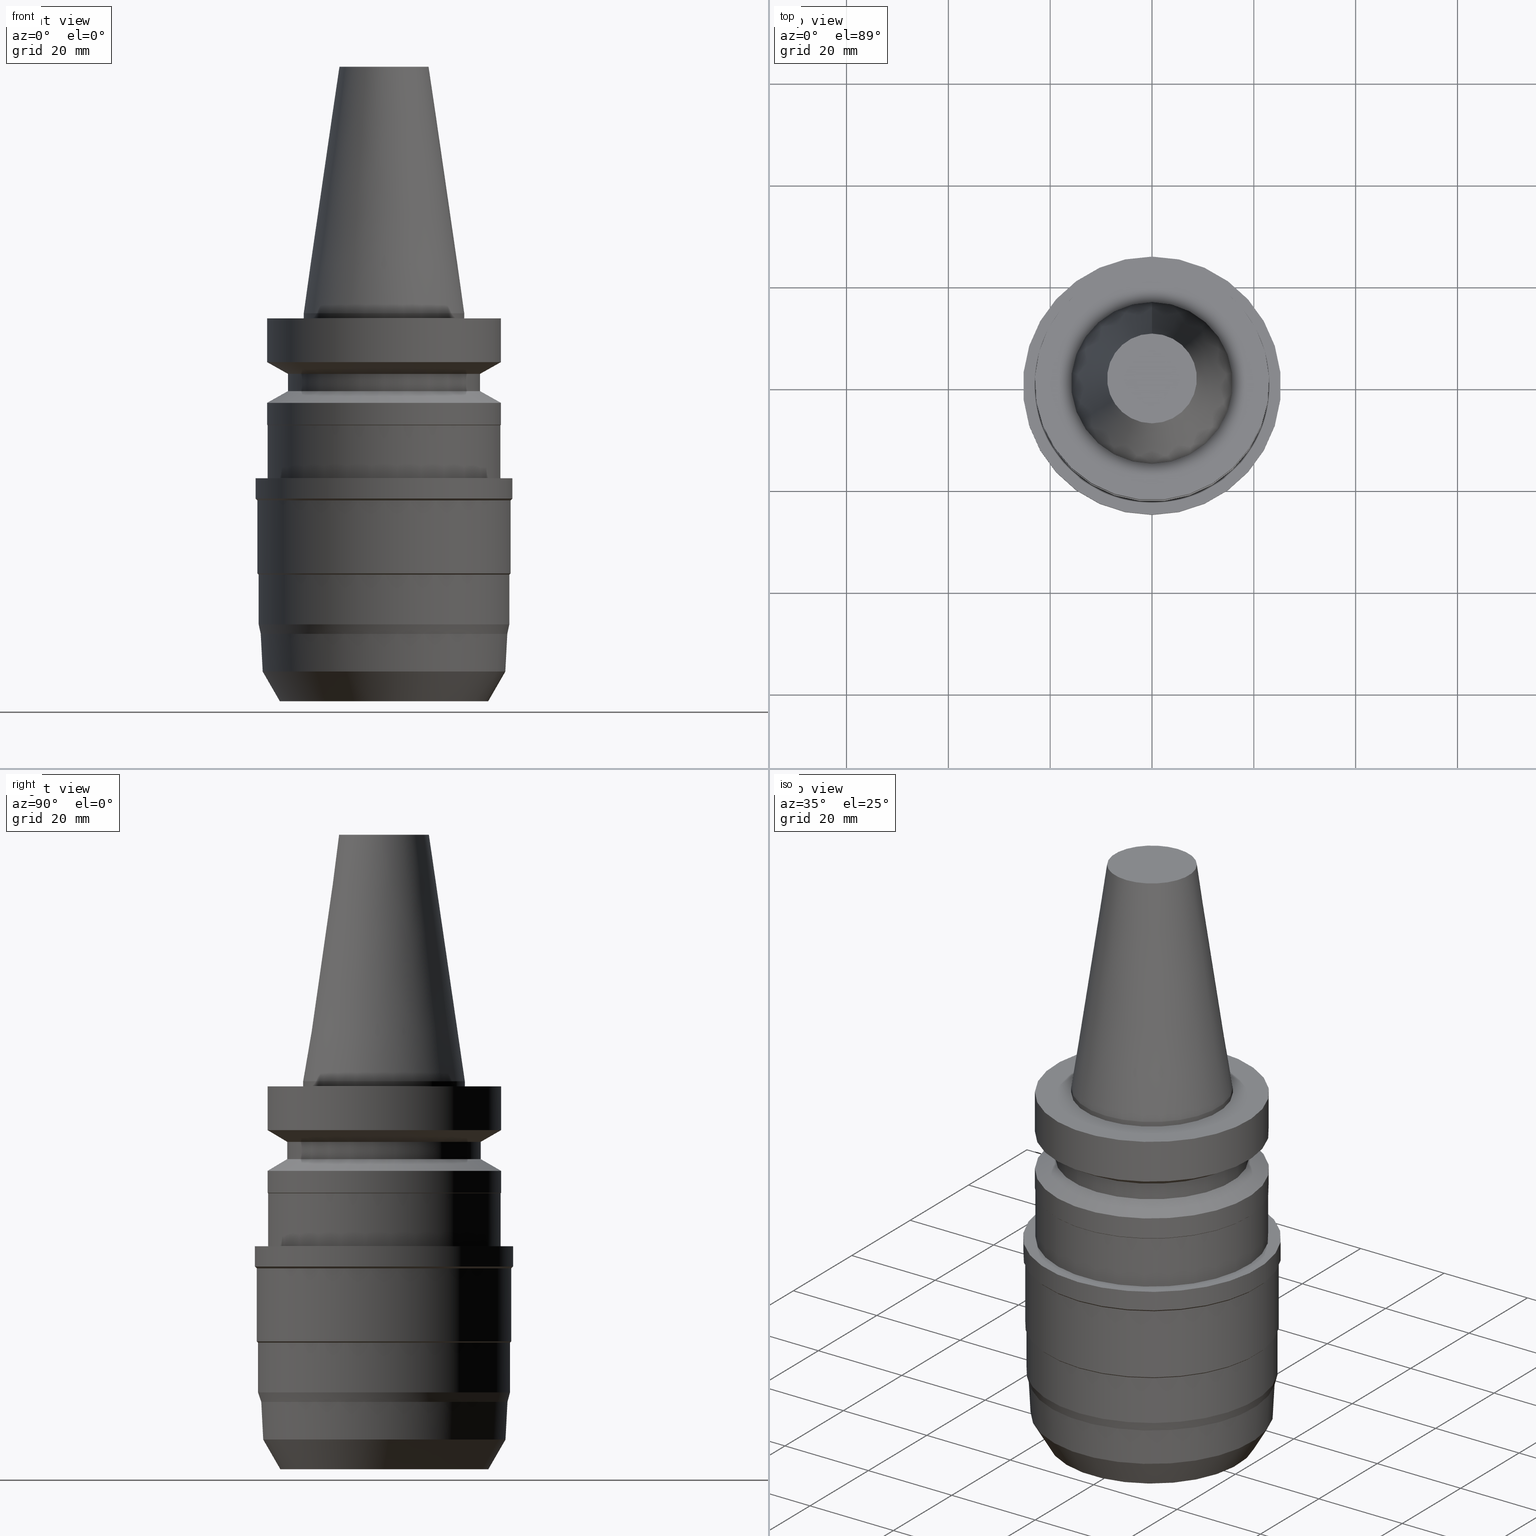
[diagram: canonical four-view strip — front | top / right | iso, engineering-drawing reading convention]
A machine part, canonical four-view strip (front | top / right | iso — engineering-drawing reading convention). The complete STEP part file that produces these views, byte-faithful:
ISO-10303-21;
HEADER;
FILE_DESCRIPTION((''),'1');
FILE_NAME('V:/90_\X2\53D65F9730C730FC30BF\X0\/00_\X2\6DE18DEF30C730FC30BF\X0\/ALL/BBT-BKUS\X2\FF76FF80FF9BFF78FF9E752852A05DE556F3\X0\201801/BBT30-HMC-S_HMC-J/BBT30-HMC.750S-3.stp','2018-02-05T01:38:00',(''),(''),'Spatial Interop R21 SP3','Kubotek KeyCreator 2011 V10.0.2 (22737)',' ');
FILE_SCHEMA(('automotive_design'));
ENDSEC;
DATA;
#1=MECHANICAL_DESIGN_GEOMETRIC_PRESENTATION_REPRESENTATION(' ',(#10,#11,#12,#13,#14,#15,#16,#17,#18,#19,#20,#21,#22,#23,#24,#25,#26,#27,#28,#29,#30,#31,#32,#33,#34,#35,#36,#37,#38,#39,#40,#41,#42,#43,#44,#45,#46,#47,#48,#49,#50,#51),#6);
#2=PRODUCT_DEFINITION_CONTEXT('',#52,'design');
#3=APPLICATION_PROTOCOL_DEFINITION('INTERNATIONAL STANDARD','automotive_design',1994,#52);
#4=PRODUCT_CATEGORY_RELATIONSHIP('NONE','NONE',#53,#54);
#5=SHAPE_DEFINITION_REPRESENTATION(#55,#56);
#6= (GEOMETRIC_REPRESENTATION_CONTEXT(3)GLOBAL_UNCERTAINTY_ASSIGNED_CONTEXT((#59))GLOBAL_UNIT_ASSIGNED_CONTEXT((#61,#62,#63))REPRESENTATION_CONTEXT('NONE','WORKSPACE'));
#10=STYLED_ITEM('',(#65),#66);
#11=STYLED_ITEM('',(#67),#68);
#12=STYLED_ITEM('',(#69,#70),#71);
#13=STYLED_ITEM('',(#72,#73),#74);
#14=STYLED_ITEM('',(#75),#76);
#15=STYLED_ITEM('',(#77),#78);
#16=STYLED_ITEM('',(#79,#80),#81);
#17=STYLED_ITEM('',(#82,#83),#84);
#18=STYLED_ITEM('',(#85,#86),#87);
#19=STYLED_ITEM('',(#88,#89),#90);
#20=STYLED_ITEM('',(#91),#92);
#21=STYLED_ITEM('',(#93),#94);
#22=STYLED_ITEM('',(#95,#96),#97);
#23=STYLED_ITEM('',(#98,#99),#100);
#24=STYLED_ITEM('',(#101,#102),#103);
#25=STYLED_ITEM('',(#104),#105);
#26=STYLED_ITEM('',(#106,#107),#108);
#27=STYLED_ITEM('',(#109,#110),#111);
#28=STYLED_ITEM('',(#112),#113);
#29=STYLED_ITEM('',(#114,#115),#116);
#30=STYLED_ITEM('',(#117,#118),#119);
#31=STYLED_ITEM('',(#120),#121);
#32=STYLED_ITEM('',(#122),#123);
#33=STYLED_ITEM('',(#124,#125),#126);
#34=STYLED_ITEM('',(#127),#128);
#35=STYLED_ITEM('',(#129),#130);
#36=STYLED_ITEM('',(#131),#132);
#37=STYLED_ITEM('',(#133),#134);
#38=STYLED_ITEM('',(#135,#136),#137);
#39=STYLED_ITEM('',(#138,#139),#140);
#40=STYLED_ITEM('',(#141),#142);
#41=STYLED_ITEM('',(#143,#144),#145);
#42=STYLED_ITEM('',(#146),#147);
#43=STYLED_ITEM('',(#148),#149);
#44=STYLED_ITEM('',(#150,#151),#152);
#45=STYLED_ITEM('',(#153,#154),#155);
#46=STYLED_ITEM('',(#156),#157);
#47=STYLED_ITEM('',(#158),#159);
#48=STYLED_ITEM('',(#160),#161);
#49=STYLED_ITEM('',(#162,#163),#164);
#50=STYLED_ITEM('',(#165,#166),#167);
#51=STYLED_ITEM('',(#168,#169),#170);
#52=APPLICATION_CONTEXT(' ');
#53=PRODUCT_CATEGORY('part','NONE');
#54=PRODUCT_RELATED_PRODUCT_CATEGORY('detail',' ',(#171));
#55=PRODUCT_DEFINITION_SHAPE('NONE','NONE',#172);
#56=ADVANCED_BREP_SHAPE_REPRESENTATION('Unnamed[1]',(#145,#173),#6);
#59=UNCERTAINTY_MEASURE_WITH_UNIT(LENGTH_MEASURE(1.0E-006),#61,'','');
#61= (CONVERSION_BASED_UNIT('MILLIMETRE',#176)LENGTH_UNIT()NAMED_UNIT(#179));
#62= (NAMED_UNIT(#181)PLANE_ANGLE_UNIT()SI_UNIT($,.RADIAN.));
#63= (NAMED_UNIT(#181)SOLID_ANGLE_UNIT()SI_UNIT($,.STERADIAN.));
#65=PRESENTATION_STYLE_ASSIGNMENT((#187));
#66=EDGE_CURVE('Unnamed[1]',#188,#188,#189,.T.);
#67=PRESENTATION_STYLE_ASSIGNMENT((#190));
#68=EDGE_CURVE('Unnamed[1]',#191,#191,#192,.T.);
#69=PRESENTATION_STYLE_ASSIGNMENT((#193));
#70=PRESENTATION_STYLE_ASSIGNMENT((#194));
#71=ADVANCED_FACE('Unnamed[1]',(#195,#196),#197,.T.);
#72=PRESENTATION_STYLE_ASSIGNMENT((#198));
#73=PRESENTATION_STYLE_ASSIGNMENT((#199));
#74=ADVANCED_FACE('Unnamed[1]',(#200,#201),#202,.T.);
#75=PRESENTATION_STYLE_ASSIGNMENT((#203));
#76=EDGE_CURVE('Unnamed[1]',#204,#204,#205,.T.);
#77=PRESENTATION_STYLE_ASSIGNMENT((#206));
#78=EDGE_CURVE('Unnamed[1]',#207,#207,#208,.T.);
#79=PRESENTATION_STYLE_ASSIGNMENT((#209));
#80=PRESENTATION_STYLE_ASSIGNMENT((#210));
#81=ADVANCED_FACE('Unnamed[1]',(#211,#212),#213,.T.);
#82=PRESENTATION_STYLE_ASSIGNMENT((#214));
#83=PRESENTATION_STYLE_ASSIGNMENT((#215));
#84=ADVANCED_FACE('Unnamed[1]',(#216,#217),#218,.T.);
#85=PRESENTATION_STYLE_ASSIGNMENT((#219));
#86=PRESENTATION_STYLE_ASSIGNMENT((#220));
#87=ADVANCED_FACE('Unnamed[1]',(#221,#222),#223,.T.);
#88=PRESENTATION_STYLE_ASSIGNMENT((#224));
#89=PRESENTATION_STYLE_ASSIGNMENT((#225));
#90=ADVANCED_FACE('Unnamed[1]',(#226,#227),#228,.T.);
#91=PRESENTATION_STYLE_ASSIGNMENT((#229));
#92=EDGE_CURVE('Unnamed[1]',#230,#230,#231,.T.);
#93=PRESENTATION_STYLE_ASSIGNMENT((#232));
#94=EDGE_CURVE('Unnamed[1]',#233,#233,#234,.T.);
#95=PRESENTATION_STYLE_ASSIGNMENT((#235));
#96=PRESENTATION_STYLE_ASSIGNMENT((#236));
#97=ADVANCED_FACE('Unnamed[1]',(#237,#238),#239,.T.);
#98=PRESENTATION_STYLE_ASSIGNMENT((#240));
#99=PRESENTATION_STYLE_ASSIGNMENT((#241));
#100=ADVANCED_FACE('Unnamed[1]',(#242,#243),#244,.T.);
#101=PRESENTATION_STYLE_ASSIGNMENT((#245));
#102=PRESENTATION_STYLE_ASSIGNMENT((#246));
#103=ADVANCED_FACE('Unnamed[1]',(#247,#248),#249,.T.);
#104=PRESENTATION_STYLE_ASSIGNMENT((#250));
#105=EDGE_CURVE('Unnamed[1]',#251,#251,#252,.T.);
#106=PRESENTATION_STYLE_ASSIGNMENT((#253));
#107=PRESENTATION_STYLE_ASSIGNMENT((#254));
#108=ADVANCED_FACE('Unnamed[1]',(#255,#256),#257,.T.);
#109=PRESENTATION_STYLE_ASSIGNMENT((#258));
#110=PRESENTATION_STYLE_ASSIGNMENT((#259));
#111=ADVANCED_FACE('Unnamed[1]',(#260,#261),#262,.T.);
#112=PRESENTATION_STYLE_ASSIGNMENT((#263));
#113=EDGE_CURVE('Unnamed[1]',#264,#264,#265,.T.);
#114=PRESENTATION_STYLE_ASSIGNMENT((#266));
#115=PRESENTATION_STYLE_ASSIGNMENT((#267));
#116=ADVANCED_FACE('Unnamed[1]',(#268,#269),#270,.T.);
#117=PRESENTATION_STYLE_ASSIGNMENT((#271));
#118=PRESENTATION_STYLE_ASSIGNMENT((#272));
#119=ADVANCED_FACE('Unnamed[1]',(#273,#274),#275,.T.);
#120=PRESENTATION_STYLE_ASSIGNMENT((#276));
#121=EDGE_CURVE('Unnamed[1]',#277,#277,#278,.T.);
#122=PRESENTATION_STYLE_ASSIGNMENT((#279));
#123=EDGE_CURVE('Unnamed[1]',#280,#280,#281,.T.);
#124=PRESENTATION_STYLE_ASSIGNMENT((#282));
#125=PRESENTATION_STYLE_ASSIGNMENT((#283));
#126=ADVANCED_FACE('Unnamed[1]',(#284,#285),#286,.T.);
#127=PRESENTATION_STYLE_ASSIGNMENT((#287));
#128=EDGE_CURVE('Unnamed[1]',#288,#288,#289,.T.);
#129=PRESENTATION_STYLE_ASSIGNMENT((#290));
#130=EDGE_CURVE('Unnamed[1]',#291,#291,#292,.T.);
#131=PRESENTATION_STYLE_ASSIGNMENT((#293));
#132=EDGE_CURVE('Unnamed[1]',#294,#294,#295,.T.);
#133=PRESENTATION_STYLE_ASSIGNMENT((#296));
#134=EDGE_CURVE('Unnamed[1]',#297,#297,#298,.T.);
#135=PRESENTATION_STYLE_ASSIGNMENT((#299));
#136=PRESENTATION_STYLE_ASSIGNMENT((#300));
#137=ADVANCED_FACE('Unnamed[1]',(#301,#302),#303,.T.);
#138=PRESENTATION_STYLE_ASSIGNMENT((#304));
#139=PRESENTATION_STYLE_ASSIGNMENT((#305));
#140=ADVANCED_FACE('Unnamed[1]',(#306,#307),#308,.T.);
#141=PRESENTATION_STYLE_ASSIGNMENT((#309));
#142=EDGE_CURVE('Unnamed[1]',#310,#310,#311,.T.);
#143=PRESENTATION_STYLE_ASSIGNMENT((#312));
#144=PRESENTATION_STYLE_ASSIGNMENT((#313));
#145=MANIFOLD_SOLID_BREP('Unnamed[1]',#314);
#146=PRESENTATION_STYLE_ASSIGNMENT((#315));
#147=EDGE_CURVE('Unnamed[1]',#316,#316,#317,.T.);
#148=PRESENTATION_STYLE_ASSIGNMENT((#318));
#149=EDGE_CURVE('Unnamed[1]',#319,#319,#320,.T.);
#150=PRESENTATION_STYLE_ASSIGNMENT((#321));
#151=PRESENTATION_STYLE_ASSIGNMENT((#322));
#152=ADVANCED_FACE('Unnamed[1]',(#323),#324,.T.);
#153=PRESENTATION_STYLE_ASSIGNMENT((#325));
#154=PRESENTATION_STYLE_ASSIGNMENT((#326));
#155=ADVANCED_FACE('Unnamed[1]',(#327,#328),#329,.T.);
#156=PRESENTATION_STYLE_ASSIGNMENT((#330));
#157=EDGE_CURVE('Unnamed[1]',#331,#331,#332,.T.);
#158=PRESENTATION_STYLE_ASSIGNMENT((#333));
#159=EDGE_CURVE('Unnamed[1]',#334,#334,#335,.T.);
#160=PRESENTATION_STYLE_ASSIGNMENT((#336));
#161=EDGE_CURVE('Unnamed[1]',#337,#337,#338,.T.);
#162=PRESENTATION_STYLE_ASSIGNMENT((#339));
#163=PRESENTATION_STYLE_ASSIGNMENT((#340));
#164=ADVANCED_FACE('Unnamed[1]',(#341,#342),#343,.T.);
#165=PRESENTATION_STYLE_ASSIGNMENT((#344));
#166=PRESENTATION_STYLE_ASSIGNMENT((#345));
#167=ADVANCED_FACE('Unnamed[1]',(#346),#347,.T.);
#168=PRESENTATION_STYLE_ASSIGNMENT((#348));
#169=PRESENTATION_STYLE_ASSIGNMENT((#349));
#170=ADVANCED_FACE('Unnamed[1]',(#350,#351),#352,.T.);
#171=PRODUCT('Unnamed[1]','Unnamed[1]','PART-Unnamed[1]-DESC',(#353));
#172=PRODUCT_DEFINITION('NONE','NONE',#354,#2);
#173=AXIS2_PLACEMENT_3D('',#355,#356,#357);
#176=LENGTH_MEASURE_WITH_UNIT(LENGTH_MEASURE(1.0),#358);
#179=DIMENSIONAL_EXPONENTS(1.0,0.0,0.0,0.0,0.0,0.0,0.0);
#181=DIMENSIONAL_EXPONENTS(0.0,0.0,0.0,0.0,0.0,0.0,0.0);
#187=CURVE_STYLE('',#359,POSITIVE_LENGTH_MEASURE(1000.0),#360);
#188=VERTEX_POINT('',#361);
#189=CIRCLE('',#362,24.2499999999994);
#190=CURVE_STYLE('',#363,POSITIVE_LENGTH_MEASURE(1000.0),#364);
#191=VERTEX_POINT('',#365);
#192=CIRCLE('',#366,23.0);
#193=SURFACE_STYLE_USAGE(.BOTH.,#367);
#194=CURVE_STYLE('',#368,POSITIVE_LENGTH_MEASURE(1000.0),#369);
#195=FACE_BOUND('',#370,.T.);
#196=FACE_BOUND('',#371,.T.);
#197=CONICAL_SURFACE('',#372,22.9500000000002,0.785398163469693);
#198=SURFACE_STYLE_USAGE(.BOTH.,#373);
#199=CURVE_STYLE('',#374,POSITIVE_LENGTH_MEASURE(1000.0),#375);
#200=FACE_BOUND('',#376,.T.);
#201=FACE_BOUND('',#377,.T.);
#202=CYLINDRICAL_SURFACE('',#378,25.3499999999993);
#203=CURVE_STYLE('',#379,POSITIVE_LENGTH_MEASURE(1000.0),#380);
#204=VERTEX_POINT('',#381);
#205=CIRCLE('',#382,19.0);
#206=CURVE_STYLE('',#383,POSITIVE_LENGTH_MEASURE(1000.0),#384);
#207=VERTEX_POINT('',#385);
#208=CIRCLE('',#386,23.0);
#209=SURFACE_STYLE_USAGE(.BOTH.,#387);
#210=CURVE_STYLE('',#388,POSITIVE_LENGTH_MEASURE(1000.0),#389);
#211=FACE_OUTER_BOUND('',#390,.T.);
#212=FACE_BOUND('',#391,.T.);
#213=PLANE('',#392);
#214=SURFACE_STYLE_USAGE(.BOTH.,#393);
#215=CURVE_STYLE('',#394,POSITIVE_LENGTH_MEASURE(1000.0),#395);
#216=FACE_BOUND('',#396,.T.);
#217=FACE_BOUND('',#397,.T.);
#218=CYLINDRICAL_SURFACE('',#398,24.7499999999997);
#219=SURFACE_STYLE_USAGE(.BOTH.,#399);
#220=CURVE_STYLE('',#400,POSITIVE_LENGTH_MEASURE(1000.0),#401);
#221=FACE_BOUND('',#402,.T.);
#222=FACE_BOUND('',#403,.T.);
#223=CYLINDRICAL_SURFACE('',#404,19.0);
#224=SURFACE_STYLE_USAGE(.BOTH.,#405);
#225=CURVE_STYLE('',#406,POSITIVE_LENGTH_MEASURE(1000.0),#407);
#226=FACE_BOUND('',#408,.T.);
#227=FACE_BOUND('',#409,.T.);
#228=CYLINDRICAL_SURFACE('',#410,24.9999999999997);
#229=CURVE_STYLE('',#411,POSITIVE_LENGTH_MEASURE(1000.0),#412);
#230=VERTEX_POINT('',#413);
#231=CIRCLE('',#414,23.0);
#232=CURVE_STYLE('',#415,POSITIVE_LENGTH_MEASURE(1000.0),#416);
#233=VERTEX_POINT('',#417);
#234=CIRCLE('',#418,25.3500000000001);
#235=SURFACE_STYLE_USAGE(.BOTH.,#419);
#236=CURVE_STYLE('',#420,POSITIVE_LENGTH_MEASURE(1000.0),#421);
#237=FACE_BOUND('',#422,.T.);
#238=FACE_BOUND('',#423,.T.);
#239=CONICAL_SURFACE('',#424,21.0,1.04719755058881);
#240=SURFACE_STYLE_USAGE(.BOTH.,#425);
#241=CURVE_STYLE('',#426,POSITIVE_LENGTH_MEASURE(1000.0),#427);
#242=FACE_OUTER_BOUND('',#428,.T.);
#243=FACE_BOUND('',#429,.T.);
#244=PLANE('',#430);
#245=SURFACE_STYLE_USAGE(.BOTH.,#431);
#246=CURVE_STYLE('',#432,POSITIVE_LENGTH_MEASURE(1000.0),#433);
#247=FACE_BOUND('',#434,.T.);
#248=FACE_BOUND('',#435,.T.);
#249=CONICAL_SURFACE('',#436,22.180788497608,0.523598775598286);
#250=CURVE_STYLE('',#437,POSITIVE_LENGTH_MEASURE(1000.0),#438);
#251=VERTEX_POINT('',#439);
#252=CIRCLE('',#440,19.0);
#253=SURFACE_STYLE_USAGE(.BOTH.,#441);
#254=CURVE_STYLE('',#442,POSITIVE_LENGTH_MEASURE(1000.0),#443);
#255=FACE_BOUND('',#444,.T.);
#256=FACE_BOUND('',#445,.T.);
#257=CYLINDRICAL_SURFACE('',#446,22.9);
#258=SURFACE_STYLE_USAGE(.BOTH.,#447);
#259=CURVE_STYLE('',#448,POSITIVE_LENGTH_MEASURE(1000.0),#449);
#260=FACE_BOUND('',#450,.T.);
#261=FACE_BOUND('',#451,.T.);
#262=CONICAL_SURFACE('',#452,24.8749999999998,0.785398163397462);
#263=CURVE_STYLE('',#453,POSITIVE_LENGTH_MEASURE(1000.0),#454);
#264=VERTEX_POINT('',#455);
#265=CIRCLE('',#456,22.9000000000005);
#266=SURFACE_STYLE_USAGE(.BOTH.,#457);
#267=CURVE_STYLE('',#458,POSITIVE_LENGTH_MEASURE(1000.0),#459);
#268=FACE_BOUND('',#460,.T.);
#269=FACE_BOUND('',#461,.T.);
#270=CONICAL_SURFACE('',#462,21.0,1.04719755058882);
#271=SURFACE_STYLE_USAGE(.BOTH.,#463);
#272=CURVE_STYLE('',#464,POSITIVE_LENGTH_MEASURE(1000.0),#465);
#273=FACE_BOUND('',#466,.T.);
#274=FACE_BOUND('',#467,.T.);
#275=CONICAL_SURFACE('',#468,12.3457500009933,0.144815870013618);
#276=CURVE_STYLE('',#469,POSITIVE_LENGTH_MEASURE(1000.0),#470);
#277=VERTEX_POINT('',#471);
#278=CIRCLE('',#472,15.875);
#279=CURVE_STYLE('',#473,POSITIVE_LENGTH_MEASURE(1000.0),#474);
#280=VERTEX_POINT('',#475);
#281=CIRCLE('',#476,22.8999999999995);
#282=SURFACE_STYLE_USAGE(.BOTH.,#477);
#283=CURVE_STYLE('',#478,POSITIVE_LENGTH_MEASURE(1000.0),#479);
#284=FACE_BOUND('',#480,.T.);
#285=FACE_BOUND('',#481,.T.);
#286=CYLINDRICAL_SURFACE('',#482,23.0);
#287=CURVE_STYLE('',#483,POSITIVE_LENGTH_MEASURE(1000.0),#484);
#288=VERTEX_POINT('',#485);
#289=CIRCLE('',#486,24.7499999999998);
#290=CURVE_STYLE('',#487,POSITIVE_LENGTH_MEASURE(1000.0),#488);
#291=VERTEX_POINT('',#489);
#292=CIRCLE('',#490,20.5000000000001);
#293=CURVE_STYLE('',#491,POSITIVE_LENGTH_MEASURE(1000.0),#492);
#294=VERTEX_POINT('',#493);
#295=CIRCLE('',#494,24.9999999999996);
#296=CURVE_STYLE('',#495,POSITIVE_LENGTH_MEASURE(1000.0),#496);
#297=VERTEX_POINT('',#497);
#298=CIRCLE('',#498,8.81650000198669);
#299=SURFACE_STYLE_USAGE(.BOTH.,#499);
#300=CURVE_STYLE('',#500,POSITIVE_LENGTH_MEASURE(1000.0),#501);
#301=FACE_BOUND('',#502,.T.);
#302=FACE_BOUND('',#503,.T.);
#303=CONICAL_SURFACE('',#504,24.0557884976076,0.052359877559767);
#304=SURFACE_STYLE_USAGE(.BOTH.,#505);
#305=CURVE_STYLE('',#506,POSITIVE_LENGTH_MEASURE(1000.0),#507);
#306=FACE_BOUND('',#508,.T.);
#307=FACE_BOUND('',#509,.T.);
#308=CYLINDRICAL_SURFACE('',#510,23.0);
#309=CURVE_STYLE('',#511,POSITIVE_LENGTH_MEASURE(1000.0),#512);
#310=VERTEX_POINT('',#513);
#311=CIRCLE('',#514,23.0);
#312=SURFACE_STYLE_USAGE(.BOTH.,#515);
#313=CURVE_STYLE('',#516,POSITIVE_LENGTH_MEASURE(1000.0),#517);
#314=CLOSED_SHELL('',(#152,#119,#164,#100,#126,#97,#87,#116,#140,#71,#108,#81,#74,#170,#90,#111,#84,#155,#137,#103,#167));
#315=CURVE_STYLE('',#518,POSITIVE_LENGTH_MEASURE(1000.0),#519);
#316=VERTEX_POINT('',#520);
#317=CIRCLE('',#521,23.8615769952158);
#318=CURVE_STYLE('',#522,POSITIVE_LENGTH_MEASURE(1000.0),#523);
#319=VERTEX_POINT('',#524);
#320=CIRCLE('',#525,24.9999999999998);
#321=SURFACE_STYLE_USAGE(.BOTH.,#526);
#322=CURVE_STYLE('',#527,POSITIVE_LENGTH_MEASURE(1000.0),#528);
#323=FACE_OUTER_BOUND('',#529,.T.);
#324=PLANE('',#530);
#325=SURFACE_STYLE_USAGE(.BOTH.,#531);
#326=CURVE_STYLE('',#532,POSITIVE_LENGTH_MEASURE(1000.0),#533);
#327=FACE_BOUND('',#534,.T.);
#328=FACE_BOUND('',#535,.T.);
#329=CONICAL_SURFACE('',#536,24.4999999999995,0.261799387798623);
#330=CURVE_STYLE('',#537,POSITIVE_LENGTH_MEASURE(1000.0),#538);
#331=VERTEX_POINT('',#539);
#332=CIRCLE('',#540,15.875);
#333=CURVE_STYLE('',#541,POSITIVE_LENGTH_MEASURE(1000.0),#542);
#334=VERTEX_POINT('',#543);
#335=CIRCLE('',#544,25.3499999999984);
#336=CURVE_STYLE('',#545,POSITIVE_LENGTH_MEASURE(1000.0),#546);
#337=VERTEX_POINT('',#547);
#338=CIRCLE('',#548,24.7499999999996);
#339=SURFACE_STYLE_USAGE(.BOTH.,#549);
#340=CURVE_STYLE('',#550,POSITIVE_LENGTH_MEASURE(1000.0),#551);
#341=FACE_BOUND('',#552,.T.);
#342=FACE_BOUND('',#553,.T.);
#343=CYLINDRICAL_SURFACE('',#554,15.875);
#344=SURFACE_STYLE_USAGE(.BOTH.,#555);
#345=CURVE_STYLE('',#556,POSITIVE_LENGTH_MEASURE(1000.0),#557);
#346=FACE_OUTER_BOUND('',#558,.T.);
#347=PLANE('',#559);
#348=SURFACE_STYLE_USAGE(.BOTH.,#560);
#349=CURVE_STYLE('',#561,POSITIVE_LENGTH_MEASURE(1000.0),#562);
#350=FACE_BOUND('',#563,.T.);
#351=FACE_BOUND('',#564,.T.);
#352=CONICAL_SURFACE('',#565,25.1749999999999,0.785398163396438);
#353=PRODUCT_CONTEXT('',#52,'mechanical');
#354=PRODUCT_DEFINITION_FORMATION_WITH_SPECIFIED_SOURCE(' ','NONE',#171,.NOT_KNOWN.);
#355=CARTESIAN_POINT('',(0.0,0.0,0.0));
#356=DIRECTION('',(0.0,0.0,1.0));
#357=DIRECTION('',(1.0,0.0,0.0));
#358= (NAMED_UNIT(#179)LENGTH_UNIT()SI_UNIT(.MILLI.,.METRE.));
#359=DRAUGHTING_PRE_DEFINED_CURVE_FONT('continuous');
#360=COLOUR_RGB('',0.0,1.0,0.0);
#361=CARTESIAN_POINT('',(3.85555707328909E-015,24.2499999999994,-62.9660254037895));
#362=AXIS2_PLACEMENT_3D('',#567,#568,#569);
#363=DRAUGHTING_PRE_DEFINED_CURVE_FONT('continuous');
#364=COLOUR_RGB('',0.0,1.0,0.0);
#365=CARTESIAN_POINT('',(5.87830463590729E-016,23.0,-9.59999999999999));
#366=AXIS2_PLACEMENT_3D('',#570,#571,#572);
#367=SURFACE_SIDE_STYLE('',(#573));
#368=DRAUGHTING_PRE_DEFINED_CURVE_FONT('continuous');
#369=COLOUR_RGB('',0.0,1.0,0.0);
#370=EDGE_LOOP('',(#574));
#371=EDGE_LOOP('',(#575));
#372=AXIS2_PLACEMENT_3D('',#576,#577,#578);
#373=SURFACE_SIDE_STYLE('',(#579));
#374=DRAUGHTING_PRE_DEFINED_CURVE_FONT('continuous');
#375=COLOUR_RGB('',0.0,1.0,0.0);
#376=EDGE_LOOP('',(#580));
#377=EDGE_LOOP('',(#581));
#378=AXIS2_PLACEMENT_3D('',#582,#583,#584);
#379=DRAUGHTING_PRE_DEFINED_CURVE_FONT('continuous');
#380=COLOUR_RGB('',0.0,1.0,0.0);
#381=CARTESIAN_POINT('',(9.36279151221199E-016,19.0,-15.29059892));
#382=AXIS2_PLACEMENT_3D('',#585,#586,#587);
#383=DRAUGHTING_PRE_DEFINED_CURVE_FONT('continuous');
#384=COLOUR_RGB('',0.0,1.0,0.0);
#385=CARTESIAN_POINT('',(1.34098824506643E-015,23.0,-21.9000000000012));
#386=AXIS2_PLACEMENT_3D('',#588,#589,#590);
#387=SURFACE_SIDE_STYLE('',(#591));
#388=DRAUGHTING_PRE_DEFINED_CURVE_FONT('continuous');
#389=COLOUR_RGB('',0.0,1.0,0.0);
#390=EDGE_LOOP('',(#592));
#391=EDGE_LOOP('',(#593));
#392=AXIS2_PLACEMENT_3D('',#594,#595,#596);
#393=SURFACE_SIDE_STYLE('',(#597));
#394=DRAUGHTING_PRE_DEFINED_CURVE_FONT('continuous');
#395=COLOUR_RGB('',0.0,1.0,0.0);
#396=EDGE_LOOP('',(#598));
#397=EDGE_LOOP('',(#599));
#398=AXIS2_PLACEMENT_3D('',#600,#601,#602);
#399=SURFACE_SIDE_STYLE('',(#603));
#400=DRAUGHTING_PRE_DEFINED_CURVE_FONT('continuous');
#401=COLOUR_RGB('',0.0,1.0,0.0);
#402=EDGE_LOOP('',(#604));
#403=EDGE_LOOP('',(#605));
#404=AXIS2_PLACEMENT_3D('',#606,#607,#608);
#405=SURFACE_SIDE_STYLE('',(#609));
#406=DRAUGHTING_PRE_DEFINED_CURVE_FONT('continuous');
#407=COLOUR_RGB('',0.0,1.0,0.0);
#408=EDGE_LOOP('',(#610));
#409=EDGE_LOOP('',(#611));
#410=AXIS2_PLACEMENT_3D('',#612,#613,#614);
#411=DRAUGHTING_PRE_DEFINED_CURVE_FONT('continuous');
#412=COLOUR_RGB('',0.0,1.0,0.0);
#413=CARTESIAN_POINT('',(6.12323399573674E-017,23.0,-0.999999999999997));
#414=AXIS2_PLACEMENT_3D('',#615,#616,#617);
#415=DRAUGHTING_PRE_DEFINED_CURVE_FONT('continuous');
#416=COLOUR_RGB('',0.0,1.0,0.0);
#417=CARTESIAN_POINT('',(2.22885717444814E-015,25.3500000000001,-36.3999999999994));
#418=AXIS2_PLACEMENT_3D('',#618,#619,#620);
#419=SURFACE_SIDE_STYLE('',(#621));
#420=DRAUGHTING_PRE_DEFINED_CURVE_FONT('continuous');
#421=COLOUR_RGB('',0.0,1.0,0.0);
#422=EDGE_LOOP('',(#622));
#423=EDGE_LOOP('',(#623));
#424=AXIS2_PLACEMENT_3D('',#624,#625,#626);
#425=SURFACE_SIDE_STYLE('',(#627));
#426=DRAUGHTING_PRE_DEFINED_CURVE_FONT('continuous');
#427=COLOUR_RGB('',0.0,1.0,0.0);
#428=EDGE_LOOP('',(#628));
#429=EDGE_LOOP('',(#629));
#430=AXIS2_PLACEMENT_3D('',#630,#631,#632);
#431=SURFACE_SIDE_STYLE('',(#633));
#432=DRAUGHTING_PRE_DEFINED_CURVE_FONT('continuous');
#433=COLOUR_RGB('',0.0,1.0,0.0);
#434=EDGE_LOOP('',(#634));
#435=EDGE_LOOP('',(#635));
#436=AXIS2_PLACEMENT_3D('',#636,#637,#638);
#437=DRAUGHTING_PRE_DEFINED_CURVE_FONT('continuous');
#438=COLOUR_RGB('',0.0,1.0,0.0);
#439=CARTESIAN_POINT('',(7.29240495619202E-016,19.0,-11.90940108));
#440=AXIS2_PLACEMENT_3D('',#639,#640,#641);
#441=SURFACE_SIDE_STYLE('',(#642));
#442=DRAUGHTING_PRE_DEFINED_CURVE_FONT('continuous');
#443=COLOUR_RGB('',0.0,1.0,0.0);
#444=EDGE_LOOP('',(#643));
#445=EDGE_LOOP('',(#644));
#446=AXIS2_PLACEMENT_3D('',#645,#646,#647);
#447=SURFACE_SIDE_STYLE('',(#648));
#448=DRAUGHTING_PRE_DEFINED_CURVE_FONT('continuous');
#449=COLOUR_RGB('',0.0,1.0,0.0);
#450=EDGE_LOOP('',(#649));
#451=EDGE_LOOP('',(#650));
#452=AXIS2_PLACEMENT_3D('',#651,#652,#653);
#453=DRAUGHTING_PRE_DEFINED_CURVE_FONT('continuous');
#454=COLOUR_RGB('',0.0,1.0,0.0);
#455=CARTESIAN_POINT('',(1.34711147906125E-015,22.9000000000005,-21.9999999999863));
#456=AXIS2_PLACEMENT_3D('',#654,#655,#656);
#457=SURFACE_SIDE_STYLE('',(#657));
#458=DRAUGHTING_PRE_DEFINED_CURVE_FONT('continuous');
#459=COLOUR_RGB('',0.0,1.0,0.0);
#460=EDGE_LOOP('',(#658));
#461=EDGE_LOOP('',(#659));
#462=AXIS2_PLACEMENT_3D('',#660,#661,#662);
#463=SURFACE_SIDE_STYLE('',(#663));
#464=DRAUGHTING_PRE_DEFINED_CURVE_FONT('continuous');
#465=COLOUR_RGB('',0.0,1.0,0.0);
#466=EDGE_LOOP('',(#664));
#467=EDGE_LOOP('',(#665));
#468=AXIS2_PLACEMENT_3D('',#666,#667,#668);
#469=DRAUGHTING_PRE_DEFINED_CURVE_FONT('continuous');
#470=COLOUR_RGB('',0.0,1.0,0.0);
#471=CARTESIAN_POINT('',(6.12323399573675E-017,15.875,-0.999999999999998));
#472=AXIS2_PLACEMENT_3D('',#669,#670,#671);
#473=DRAUGHTING_PRE_DEFINED_CURVE_FONT('continuous');
#474=COLOUR_RGB('',0.0,1.0,0.0);
#475=CARTESIAN_POINT('',(1.98392781461883E-015,22.8999999999995,-32.400000000002));
#476=AXIS2_PLACEMENT_3D('',#672,#673,#674);
#477=SURFACE_SIDE_STYLE('',(#675));
#478=DRAUGHTING_PRE_DEFINED_CURVE_FONT('continuous');
#479=COLOUR_RGB('',0.0,1.0,0.0);
#480=EDGE_LOOP('',(#676));
#481=EDGE_LOOP('',(#677));
#482=AXIS2_PLACEMENT_3D('',#678,#679,#680);
#483=DRAUGHTING_PRE_DEFINED_CURVE_FONT('continuous');
#484=COLOUR_RGB('',0.0,1.0,0.0);
#485=CARTESIAN_POINT('',(3.14428065681082E-015,24.7499999999998,-51.3499999999999));
#486=AXIS2_PLACEMENT_3D('',#681,#682,#683);
#487=DRAUGHTING_PRE_DEFINED_CURVE_FONT('continuous');
#488=COLOUR_RGB('',0.0,1.0,0.0);
#489=CARTESIAN_POINT('',(4.6659043047514E-015,20.5000000000002,-76.1999999999998));
#490=AXIS2_PLACEMENT_3D('',#684,#685,#686);
#491=DRAUGHTING_PRE_DEFINED_CURVE_FONT('continuous');
#492=COLOUR_RGB('',0.0,1.0,0.0);
#493=CARTESIAN_POINT('',(2.2502884934333E-015,24.9999999999996,-36.7500000000006));
#494=AXIS2_PLACEMENT_3D('',#687,#688,#689);
#495=DRAUGHTING_PRE_DEFINED_CURVE_FONT('continuous');
#496=COLOUR_RGB('',0.0,1.0,0.0);
#497=CARTESIAN_POINT('',(-2.96364525393659E-015,8.81650000198669,48.4));
#498=AXIS2_PLACEMENT_3D('',#690,#691,#692);
#499=SURFACE_SIDE_STYLE('',(#693));
#500=DRAUGHTING_PRE_DEFINED_CURVE_FONT('continuous');
#501=COLOUR_RGB('',0.0,1.0,0.0);
#502=EDGE_LOOP('',(#694));
#503=EDGE_LOOP('',(#695));
#504=AXIS2_PLACEMENT_3D('',#696,#697,#698);
#505=SURFACE_SIDE_STYLE('',(#699));
#506=DRAUGHTING_PRE_DEFINED_CURVE_FONT('continuous');
#507=COLOUR_RGB('',0.0,1.0,0.0);
#508=EDGE_LOOP('',(#700));
#509=EDGE_LOOP('',(#701));
#510=AXIS2_PLACEMENT_3D('',#702,#703,#704);
#511=DRAUGHTING_PRE_DEFINED_CURVE_FONT('continuous');
#512=COLOUR_RGB('',0.0,1.0,0.0);
#513=CARTESIAN_POINT('',(1.07768918324967E-015,23.0,-17.6));
#514=AXIS2_PLACEMENT_3D('',#705,#706,#707);
#515=SURFACE_SIDE_STYLE('',(#708));
#516=DRAUGHTING_PRE_DEFINED_CURVE_FONT('continuous');
#517=COLOUR_RGB('',0.0,1.0,0.0);
#518=DRAUGHTING_PRE_DEFINED_CURVE_FONT('continuous');
#519=COLOUR_RGB('',0.0,1.0,0.0);
#520=CARTESIAN_POINT('',(4.3093837723321E-015,23.8615769952158,-70.3775778507314));
#521=AXIS2_PLACEMENT_3D('',#709,#710,#711);
#522=DRAUGHTING_PRE_DEFINED_CURVE_FONT('continuous');
#523=COLOUR_RGB('',0.0,1.0,0.0);
#524=CARTESIAN_POINT('',(3.12897257182148E-015,24.9999999999998,-51.1));
#525=AXIS2_PLACEMENT_3D('',#712,#713,#714);
#526=SURFACE_SIDE_STYLE('',(#715));
#527=DRAUGHTING_PRE_DEFINED_CURVE_FONT('continuous');
#528=COLOUR_RGB('',0.0,1.0,0.0);
#529=EDGE_LOOP('',(#716));
#530=AXIS2_PLACEMENT_3D('',#717,#718,#719);
#531=SURFACE_SIDE_STYLE('',(#720));
#532=DRAUGHTING_PRE_DEFINED_CURVE_FONT('continuous');
#533=COLOUR_RGB('',0.0,1.0,0.0);
#534=EDGE_LOOP('',(#721));
#535=EDGE_LOOP('',(#722));
#536=AXIS2_PLACEMENT_3D('',#723,#724,#725);
#537=DRAUGHTING_PRE_DEFINED_CURVE_FONT('continuous');
#538=COLOUR_RGB('',0.0,1.0,0.0);
#539=CARTESIAN_POINT('',(-1.95674482349743E-031,15.875,1.94412679364642E-015));
#540=AXIS2_PLACEMENT_3D('',#726,#727,#728);
#541=DRAUGHTING_PRE_DEFINED_CURVE_FONT('continuous');
#542=COLOUR_RGB('',0.0,1.0,0.0);
#543=CARTESIAN_POINT('',(1.98392781461888E-015,25.3499999999985,-32.4000000000027));
#544=AXIS2_PLACEMENT_3D('',#729,#730,#731);
#545=DRAUGHTING_PRE_DEFINED_CURVE_FONT('continuous');
#546=COLOUR_RGB('',0.0,1.0,0.0);
#547=CARTESIAN_POINT('',(3.74129597139517E-015,24.7499999999996,-61.1000000000001));
#548=AXIS2_PLACEMENT_3D('',#732,#733,#734);
#549=SURFACE_SIDE_STYLE('',(#735));
#550=DRAUGHTING_PRE_DEFINED_CURVE_FONT('continuous');
#551=COLOUR_RGB('',0.0,1.0,0.0);
#552=EDGE_LOOP('',(#736));
#553=EDGE_LOOP('',(#737));
#554=AXIS2_PLACEMENT_3D('',#738,#739,#740);
#555=SURFACE_SIDE_STYLE('',(#741));
#556=DRAUGHTING_PRE_DEFINED_CURVE_FONT('continuous');
#557=COLOUR_RGB('',0.0,1.0,0.0);
#558=EDGE_LOOP('',(#742));
#559=AXIS2_PLACEMENT_3D('',#743,#744,#745);
#560=SURFACE_SIDE_STYLE('',(#746));
#561=DRAUGHTING_PRE_DEFINED_CURVE_FONT('continuous');
#562=COLOUR_RGB('',0.0,1.0,0.0);
#563=EDGE_LOOP('',(#747));
#564=EDGE_LOOP('',(#748));
#565=AXIS2_PLACEMENT_3D('',#749,#750,#751);
#567=CARTESIAN_POINT('',(3.85555707328909E-015,7.71111414657818E-015,-62.9660254037895));
#568=DIRECTION('',(6.12323399573677E-017,1.22464679914735E-016,-1.0));
#569=DIRECTION('',(-1.23259516440783E-032,1.0,1.22464679914735E-016));
#570=CARTESIAN_POINT('',(5.87830463590729E-016,1.17566092718146E-015,-9.59999999999999));
#571=DIRECTION('',(6.12323399573677E-017,1.22464679914735E-016,-1.0));
#572=DIRECTION('',(-1.23259516440783E-032,1.0,1.22464679914735E-016));
#573=SURFACE_STYLE_FILL_AREA(#752);
#574=ORIENTED_EDGE('',*,*,#113,.F.);
#575=ORIENTED_EDGE('',*,*,#78,.T.);
#576=CARTESIAN_POINT('',(1.34404986206384E-015,2.68809972412768E-015,-21.9499999999938));
#577=DIRECTION('',(-6.12323399573677E-017,-1.22464679914735E-016,1.0));
#578=DIRECTION('',(-1.23259516440783E-032,1.0,1.22464679914735E-016));
#579=SURFACE_STYLE_FILL_AREA(#753);
#580=ORIENTED_EDGE('',*,*,#94,.F.);
#581=ORIENTED_EDGE('',*,*,#159,.T.);
#582=CARTESIAN_POINT('',(2.10639249453351E-015,4.21278498906702E-015,-34.4000000000011));
#583=DIRECTION('',(6.12323399573677E-017,1.22464679914735E-016,-1.0));
#584=DIRECTION('',(-1.23259516440783E-032,1.0,1.22464679914735E-016));
#585=CARTESIAN_POINT('',(9.36279151221199E-016,1.8725583024424E-015,-15.29059892));
#586=DIRECTION('',(6.12323399573677E-017,1.22464679914735E-016,-1.0));
#587=DIRECTION('',(-1.23259516440783E-032,1.0,1.22464679914735E-016));
#588=CARTESIAN_POINT('',(1.34098824506643E-015,2.68197649013286E-015,-21.9000000000012));
#589=DIRECTION('',(6.12323399573677E-017,1.22464679914735E-016,-1.0));
#590=DIRECTION('',(-1.23259516440783E-032,1.0,1.22464679914735E-016));
#591=SURFACE_STYLE_FILL_AREA(#754);
#592=ORIENTED_EDGE('',*,*,#159,.F.);
#593=ORIENTED_EDGE('',*,*,#123,.T.);
#594=CARTESIAN_POINT('',(1.98392781461886E-015,24.124999999999,-32.4000000000024));
#595=DIRECTION('',(-6.12323399573677E-017,3.01495676214293E-013,1.0));
#596=DIRECTION('',(-1.84564585888993E-029,-1.0,3.01495676214293E-013));
#597=SURFACE_STYLE_FILL_AREA(#755);
#598=ORIENTED_EDGE('',*,*,#161,.F.);
#599=ORIENTED_EDGE('',*,*,#128,.T.);
#600=CARTESIAN_POINT('',(3.442788314103E-015,6.88557662820599E-015,-56.225));
#601=DIRECTION('',(6.12323399573677E-017,1.22464679914735E-016,-1.0));
#602=DIRECTION('',(-1.23259516440783E-032,1.0,1.22464679914735E-016));
#603=SURFACE_STYLE_FILL_AREA(#756);
#604=ORIENTED_EDGE('',*,*,#76,.F.);
#605=ORIENTED_EDGE('',*,*,#105,.T.);
#606=CARTESIAN_POINT('',(8.32759823420201E-016,1.6655196468404E-015,-13.6));
#607=DIRECTION('',(6.12323399573677E-017,1.22464679914735E-016,-1.0));
#608=DIRECTION('',(-1.23259516440783E-032,1.0,1.22464679914735E-016));
#609=SURFACE_STYLE_FILL_AREA(#757);
#610=ORIENTED_EDGE('',*,*,#149,.F.);
#611=ORIENTED_EDGE('',*,*,#132,.T.);
#612=CARTESIAN_POINT('',(2.68963053262739E-015,5.37926106525478E-015,-43.9250000000003));
#613=DIRECTION('',(6.12323399573676E-017,1.22464679914735E-016,-1.0));
#614=DIRECTION('',(-1.23259516440783E-032,1.0,1.22464679914735E-016));
#615=CARTESIAN_POINT('',(6.12323399573677E-017,1.22464679914735E-016,-1.0));
#616=DIRECTION('',(6.12323399573677E-017,1.22464679914735E-016,-1.0));
#617=DIRECTION('',(-1.23259516440783E-032,1.0,1.22464679914735E-016));
#618=CARTESIAN_POINT('',(2.22885717444814E-015,4.45771434889629E-015,-36.3999999999994));
#619=DIRECTION('',(6.12323399573677E-017,1.22464679914735E-016,-1.0));
#620=DIRECTION('',(-1.23259516440783E-032,1.0,1.22464679914735E-016));
#621=SURFACE_STYLE_FILL_AREA(#758);
#622=ORIENTED_EDGE('',*,*,#105,.F.);
#623=ORIENTED_EDGE('',*,*,#68,.T.);
#624=CARTESIAN_POINT('',(6.58535479604966E-016,1.31707095920993E-015,-10.75470054));
#625=DIRECTION('',(-6.12323399573677E-017,-1.22464679914735E-016,1.0));
#626=DIRECTION('',(-1.23259516440783E-032,1.0,1.22464679914735E-016));
#627=SURFACE_STYLE_FILL_AREA(#759);
#628=ORIENTED_EDGE('',*,*,#92,.F.);
#629=ORIENTED_EDGE('',*,*,#121,.T.);
#630=CARTESIAN_POINT('',(6.12323399573674E-017,19.4375,-0.999999999999998));
#631=DIRECTION('',(-6.12323399573677E-017,-1.22464679914735E-016,1.0));
#632=DIRECTION('',(1.23259516440783E-032,-1.0,-1.22464679914735E-016));
#633=SURFACE_STYLE_FILL_AREA(#760);
#634=ORIENTED_EDGE('',*,*,#130,.F.);
#635=ORIENTED_EDGE('',*,*,#147,.T.);
#636=CARTESIAN_POINT('',(4.48764403854175E-015,8.9752880770835E-015,-73.2887889253656));
#637=DIRECTION('',(-6.12323399573677E-017,-1.22464679914735E-016,1.0));
#638=DIRECTION('',(-1.23259516440783E-032,1.0,1.22464679914735E-016));
#639=CARTESIAN_POINT('',(7.29240495619202E-016,1.4584809912384E-015,-11.90940108));
#640=DIRECTION('',(6.12323399573677E-017,1.22464679914735E-016,-1.0));
#641=DIRECTION('',(-1.23259516440783E-032,1.0,1.22464679914735E-016));
#642=SURFACE_STYLE_FILL_AREA(#761);
#643=ORIENTED_EDGE('',*,*,#123,.F.);
#644=ORIENTED_EDGE('',*,*,#113,.T.);
#645=CARTESIAN_POINT('',(1.66551964684004E-015,3.33103929368009E-015,-27.1999999999942));
#646=DIRECTION('',(6.12323399573677E-017,1.22464679914735E-016,-1.0));
#647=DIRECTION('',(-1.23259516440783E-032,1.0,1.22464679914735E-016));
#648=SURFACE_STYLE_FILL_AREA(#762);
#649=ORIENTED_EDGE('',*,*,#128,.F.);
#650=ORIENTED_EDGE('',*,*,#149,.T.);
#651=CARTESIAN_POINT('',(3.13662661431615E-015,6.27325322863231E-015,-51.2249999999999));
#652=DIRECTION('',(-6.12323399573677E-017,-1.22464679914735E-016,1.0));
#653=DIRECTION('',(-1.23259516440783E-032,1.0,1.22464679914735E-016));
#654=CARTESIAN_POINT('',(1.34711147906125E-015,2.6942229581225E-015,-21.9999999999863));
#655=DIRECTION('',(6.12323399573677E-017,1.22464679914735E-016,-1.0));
#656=DIRECTION('',(-1.23259516440783E-032,1.0,1.22464679914735E-016));
#657=SURFACE_STYLE_FILL_AREA(#763);
#658=ORIENTED_EDGE('',*,*,#142,.F.);
#659=ORIENTED_EDGE('',*,*,#76,.T.);
#660=CARTESIAN_POINT('',(1.00698416723543E-015,2.01396833447087E-015,-16.44529946));
#661=DIRECTION('',(6.12323399573677E-017,1.22464679914735E-016,-1.0));
#662=DIRECTION('',(-1.23259516440783E-032,1.0,1.22464679914735E-016));
#663=SURFACE_STYLE_FILL_AREA(#764);
#664=ORIENTED_EDGE('',*,*,#157,.F.);
#665=ORIENTED_EDGE('',*,*,#134,.T.);
#666=CARTESIAN_POINT('',(-1.4818226269683E-015,-2.96364525393659E-015,24.2));
#667=DIRECTION('',(6.12323399573677E-017,1.22464679914735E-016,-1.0));
#668=DIRECTION('',(-1.23259516440783E-032,1.0,1.22464679914735E-016));
#669=CARTESIAN_POINT('',(6.12323399573677E-017,1.22464679914735E-016,-1.0));
#670=DIRECTION('',(6.12323399573677E-017,1.22464679914735E-016,-1.0));
#671=DIRECTION('',(-1.23259516440783E-032,1.0,1.22464679914735E-016));
#672=CARTESIAN_POINT('',(1.98392781461883E-015,3.96785562923767E-015,-32.400000000002));
#673=DIRECTION('',(6.12323399573677E-017,1.22464679914735E-016,-1.0));
#674=DIRECTION('',(-1.23259516440783E-032,1.0,1.22464679914735E-016));
#675=SURFACE_STYLE_FILL_AREA(#765);
#676=ORIENTED_EDGE('',*,*,#68,.F.);
#677=ORIENTED_EDGE('',*,*,#92,.T.);
#678=CARTESIAN_POINT('',(3.24531401774048E-016,6.49062803548097E-016,-5.3));
#679=DIRECTION('',(6.12323399573677E-017,1.22464679914735E-016,-1.0));
#680=DIRECTION('',(-1.23259516440783E-032,1.0,1.22464679914735E-016));
#681=CARTESIAN_POINT('',(3.14428065681082E-015,6.28856131362165E-015,-51.3499999999999));
#682=DIRECTION('',(6.12323399573677E-017,1.22464679914735E-016,-1.0));
#683=DIRECTION('',(-1.23259516440783E-032,1.0,1.22464679914735E-016));
#684=CARTESIAN_POINT('',(4.6659043047514E-015,9.33180860950281E-015,-76.1999999999998));
#685=DIRECTION('',(6.12323399573677E-017,1.22464679914735E-016,-1.0));
#686=DIRECTION('',(-1.23259516440783E-032,1.0,1.22464679914735E-016));
#687=CARTESIAN_POINT('',(2.2502884934333E-015,4.50057698686659E-015,-36.7500000000006));
#688=DIRECTION('',(6.12323399573677E-017,1.22464679914735E-016,-1.0));
#689=DIRECTION('',(-1.23259516440783E-032,1.0,1.22464679914735E-016));
#690=CARTESIAN_POINT('',(-2.96364525393659E-015,-5.92729050787319E-015,48.4));
#691=DIRECTION('',(6.12323399573677E-017,1.22464679914735E-016,-1.0));
#692=DIRECTION('',(-1.23259516440783E-032,1.0,1.22464679914735E-016));
#693=SURFACE_STYLE_FILL_AREA(#766);
#694=ORIENTED_EDGE('',*,*,#147,.F.);
#695=ORIENTED_EDGE('',*,*,#66,.T.);
#696=CARTESIAN_POINT('',(4.08247042281059E-015,8.16494084562118E-015,-66.6718016272605));
#697=DIRECTION('',(-6.12323399573677E-017,-1.22464679914735E-016,1.0));
#698=DIRECTION('',(-1.23259516440783E-032,1.0,1.22464679914735E-016));
#699=SURFACE_STYLE_FILL_AREA(#767);
#700=ORIENTED_EDGE('',*,*,#78,.F.);
#701=ORIENTED_EDGE('',*,*,#142,.T.);
#702=CARTESIAN_POINT('',(1.20933871415805E-015,2.4186774283161E-015,-19.7500000000006));
#703=DIRECTION('',(6.12323399573677E-017,1.22464679914735E-016,-1.0));
#704=DIRECTION('',(-1.23259516440783E-032,1.0,1.22464679914735E-016));
#705=CARTESIAN_POINT('',(1.07768918324967E-015,2.15537836649934E-015,-17.6));
#706=DIRECTION('',(6.12323399573677E-017,1.22464679914735E-016,-1.0));
#707=DIRECTION('',(-1.23259516440783E-032,1.0,1.22464679914735E-016));
#708=SURFACE_STYLE_FILL_AREA(#768);
#709=CARTESIAN_POINT('',(4.3093837723321E-015,8.61876754466419E-015,-70.3775778507314));
#710=DIRECTION('',(6.12323399573676E-017,1.22464679914735E-016,-1.0));
#711=DIRECTION('',(-1.23259516440783E-032,1.0,1.22464679914735E-016));
#712=CARTESIAN_POINT('',(3.12897257182148E-015,6.25794514364297E-015,-51.1));
#713=DIRECTION('',(6.12323399573677E-017,1.22464679914735E-016,-1.0));
#714=DIRECTION('',(-1.23259516440783E-032,1.0,1.22464679914735E-016));
#715=SURFACE_STYLE_FILL_AREA(#769);
#716=ORIENTED_EDGE('',*,*,#134,.F.);
#717=CARTESIAN_POINT('',(-2.96364525393659E-015,4.40825000099334,48.4));
#718=DIRECTION('',(-6.12323399573677E-017,-1.22464679914735E-016,1.0));
#719=DIRECTION('',(1.23259516440783E-032,-1.0,-1.22464679914735E-016));
#720=SURFACE_STYLE_FILL_AREA(#770);
#721=ORIENTED_EDGE('',*,*,#66,.F.);
#722=ORIENTED_EDGE('',*,*,#161,.T.);
#723=CARTESIAN_POINT('',(3.79842652234213E-015,7.59685304468426E-015,-62.0330127018948));
#724=DIRECTION('',(-6.12323399573677E-017,-1.22464679914735E-016,1.0));
#725=DIRECTION('',(-1.23259516440783E-032,1.0,1.22464679914735E-016));
#726=CARTESIAN_POINT('',(0.0,0.0,0.0));
#727=DIRECTION('',(6.12323399573677E-017,1.22464679914735E-016,-1.0));
#728=DIRECTION('',(-1.23259516440783E-032,1.0,1.22464679914735E-016));
#729=CARTESIAN_POINT('',(1.98392781461888E-015,3.96785562923776E-015,-32.4000000000027));
#730=DIRECTION('',(6.12323399573677E-017,1.22464679914735E-016,-1.0));
#731=DIRECTION('',(-1.23259516440783E-032,1.0,1.22464679914735E-016));
#732=CARTESIAN_POINT('',(3.74129597139517E-015,7.48259194279034E-015,-61.1000000000001));
#733=DIRECTION('',(6.12323399573677E-017,1.22464679914735E-016,-1.0));
#734=DIRECTION('',(-1.23259516440783E-032,1.0,1.22464679914735E-016));
#735=SURFACE_STYLE_FILL_AREA(#771);
#736=ORIENTED_EDGE('',*,*,#121,.F.);
#737=ORIENTED_EDGE('',*,*,#157,.T.);
#738=CARTESIAN_POINT('',(3.06161699786838E-017,6.12323399573676E-017,-0.5));
#739=DIRECTION('',(6.12323399573677E-017,1.22464679914735E-016,-1.0));
#740=DIRECTION('',(-1.23259516440783E-032,1.0,1.22464679914735E-016));
#741=SURFACE_STYLE_FILL_AREA(#772);
#742=ORIENTED_EDGE('',*,*,#130,.T.);
#743=CARTESIAN_POINT('',(4.66590430475141E-015,10.2500000000001,-76.1999999999999));
#744=DIRECTION('',(6.12323399573677E-017,8.44101378149634E-015,-1.0));
#745=DIRECTION('',(-5.21690178184178E-031,1.0,8.44101378149634E-015));
#746=SURFACE_STYLE_FILL_AREA(#773);
#747=ORIENTED_EDGE('',*,*,#132,.F.);
#748=ORIENTED_EDGE('',*,*,#94,.T.);
#749=CARTESIAN_POINT('',(2.23957283394072E-015,4.47914566788144E-015,-36.575));
#750=DIRECTION('',(-6.12323399573676E-017,-1.22464679914735E-016,1.0));
#751=DIRECTION('',(-1.23259516440783E-032,1.0,1.22464679914735E-016));
#752=FILL_AREA_STYLE('',(#774));
#753=FILL_AREA_STYLE('',(#775));
#754=FILL_AREA_STYLE('',(#776));
#755=FILL_AREA_STYLE('',(#777));
#756=FILL_AREA_STYLE('',(#778));
#757=FILL_AREA_STYLE('',(#779));
#758=FILL_AREA_STYLE('',(#780));
#759=FILL_AREA_STYLE('',(#781));
#760=FILL_AREA_STYLE('',(#782));
#761=FILL_AREA_STYLE('',(#783));
#762=FILL_AREA_STYLE('',(#784));
#763=FILL_AREA_STYLE('',(#785));
#764=FILL_AREA_STYLE('',(#786));
#765=FILL_AREA_STYLE('',(#787));
#766=FILL_AREA_STYLE('',(#788));
#767=FILL_AREA_STYLE('',(#789));
#768=FILL_AREA_STYLE('',(#790));
#769=FILL_AREA_STYLE('',(#791));
#770=FILL_AREA_STYLE('',(#792));
#771=FILL_AREA_STYLE('',(#793));
#772=FILL_AREA_STYLE('',(#794));
#773=FILL_AREA_STYLE('',(#795));
#774=FILL_AREA_STYLE_COLOUR('',#796);
#775=FILL_AREA_STYLE_COLOUR('',#797);
#776=FILL_AREA_STYLE_COLOUR('',#798);
#777=FILL_AREA_STYLE_COLOUR('',#799);
#778=FILL_AREA_STYLE_COLOUR('',#800);
#779=FILL_AREA_STYLE_COLOUR('',#801);
#780=FILL_AREA_STYLE_COLOUR('',#802);
#781=FILL_AREA_STYLE_COLOUR('',#803);
#782=FILL_AREA_STYLE_COLOUR('',#804);
#783=FILL_AREA_STYLE_COLOUR('',#805);
#784=FILL_AREA_STYLE_COLOUR('',#806);
#785=FILL_AREA_STYLE_COLOUR('',#807);
#786=FILL_AREA_STYLE_COLOUR('',#808);
#787=FILL_AREA_STYLE_COLOUR('',#809);
#788=FILL_AREA_STYLE_COLOUR('',#810);
#789=FILL_AREA_STYLE_COLOUR('',#811);
#790=FILL_AREA_STYLE_COLOUR('',#812);
#791=FILL_AREA_STYLE_COLOUR('',#813);
#792=FILL_AREA_STYLE_COLOUR('',#814);
#793=FILL_AREA_STYLE_COLOUR('',#815);
#794=FILL_AREA_STYLE_COLOUR('',#816);
#795=FILL_AREA_STYLE_COLOUR('',#817);
#796=COLOUR_RGB('',0.0,1.0,0.0);
#797=COLOUR_RGB('',0.0,1.0,0.0);
#798=COLOUR_RGB('',0.0,1.0,0.0);
#799=COLOUR_RGB('',0.0,1.0,0.0);
#800=COLOUR_RGB('',0.0,1.0,0.0);
#801=COLOUR_RGB('',0.0,1.0,0.0);
#802=COLOUR_RGB('',0.0,1.0,0.0);
#803=COLOUR_RGB('',0.0,1.0,0.0);
#804=COLOUR_RGB('',0.0,1.0,0.0);
#805=COLOUR_RGB('',0.0,1.0,0.0);
#806=COLOUR_RGB('',0.0,1.0,0.0);
#807=COLOUR_RGB('',0.0,1.0,0.0);
#808=COLOUR_RGB('',0.0,1.0,0.0);
#809=COLOUR_RGB('',0.0,1.0,0.0);
#810=COLOUR_RGB('',0.0,1.0,0.0);
#811=COLOUR_RGB('',0.0,1.0,0.0);
#812=COLOUR_RGB('',0.0,1.0,0.0);
#813=COLOUR_RGB('',0.0,1.0,0.0);
#814=COLOUR_RGB('',0.0,1.0,0.0);
#815=COLOUR_RGB('',0.0,1.0,0.0);
#816=COLOUR_RGB('',0.0,1.0,0.0);
#817=COLOUR_RGB('',0.0,1.0,0.0);
ENDSEC;
END-ISO-10303-21;
